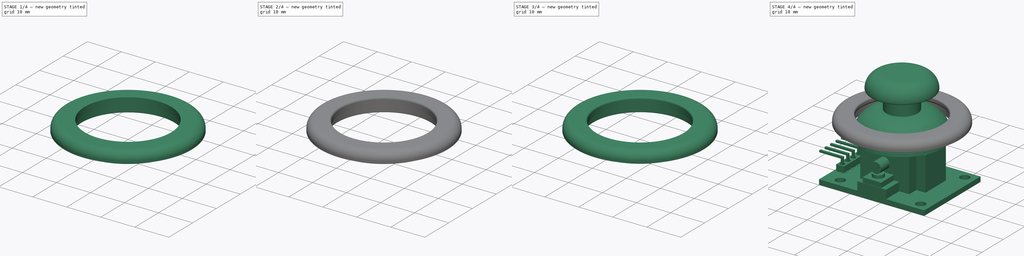
[diagram: build sequence overview — one tinted view per stage of 4, left to right]
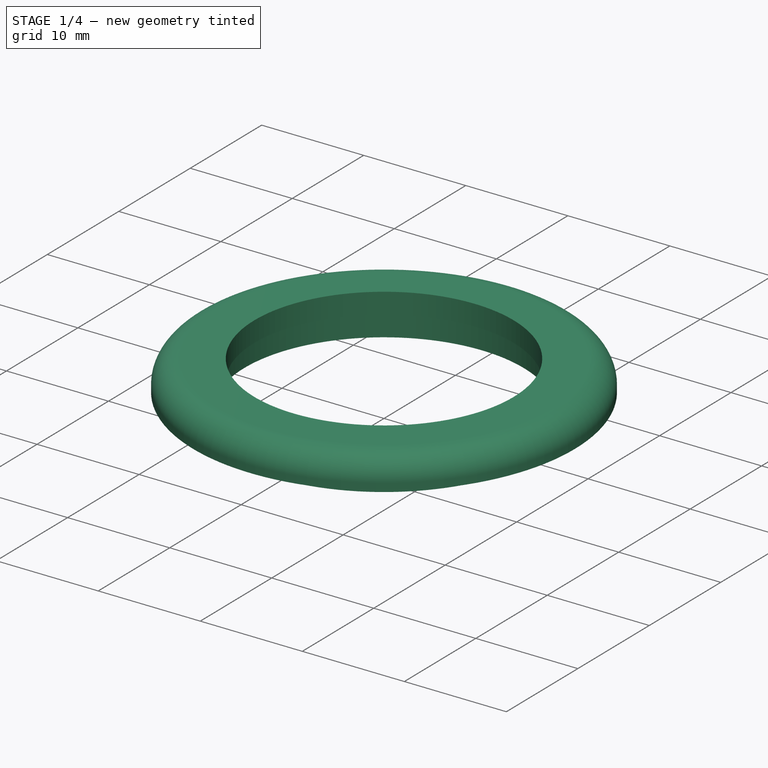
[diagram: stage 1 of 4 — iso view after this stage's code; geometry added in this stage tinted green]
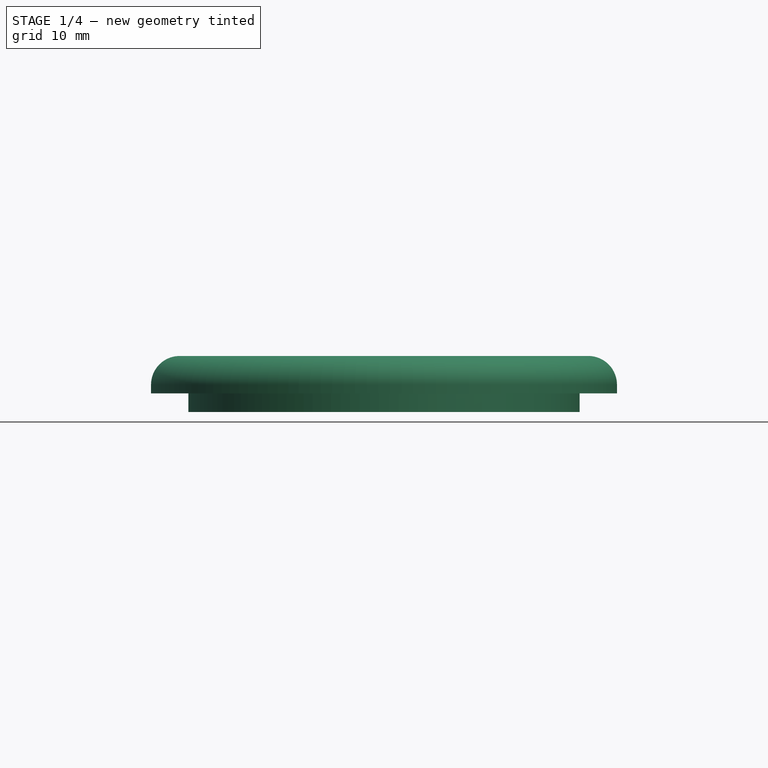
[diagram: stage 1 of 4 — front view after this stage's code; geometry added in this stage tinted green]
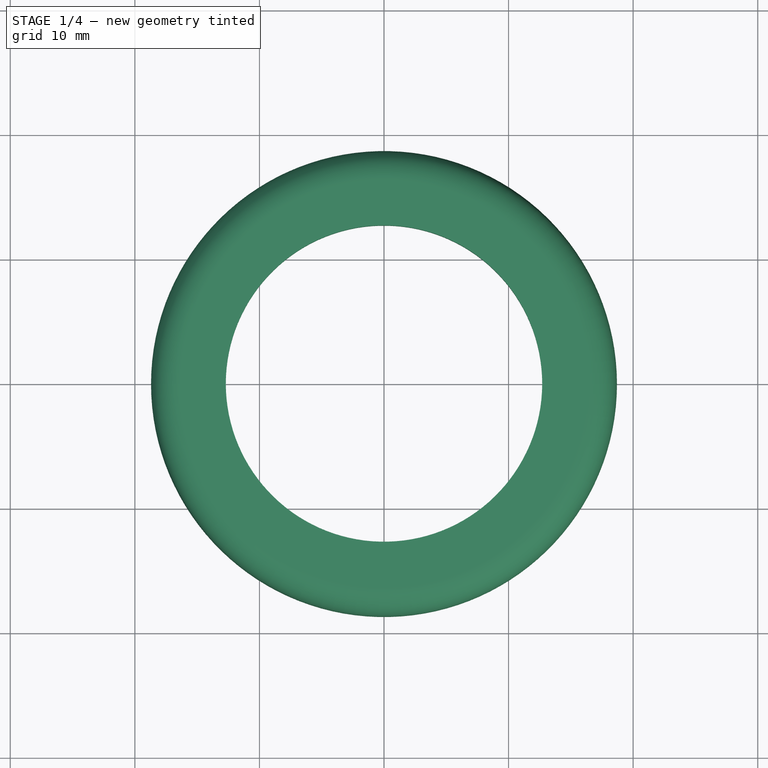
[diagram: stage 1 of 4 — top view after this stage's code; geometry added in this stage tinted green]
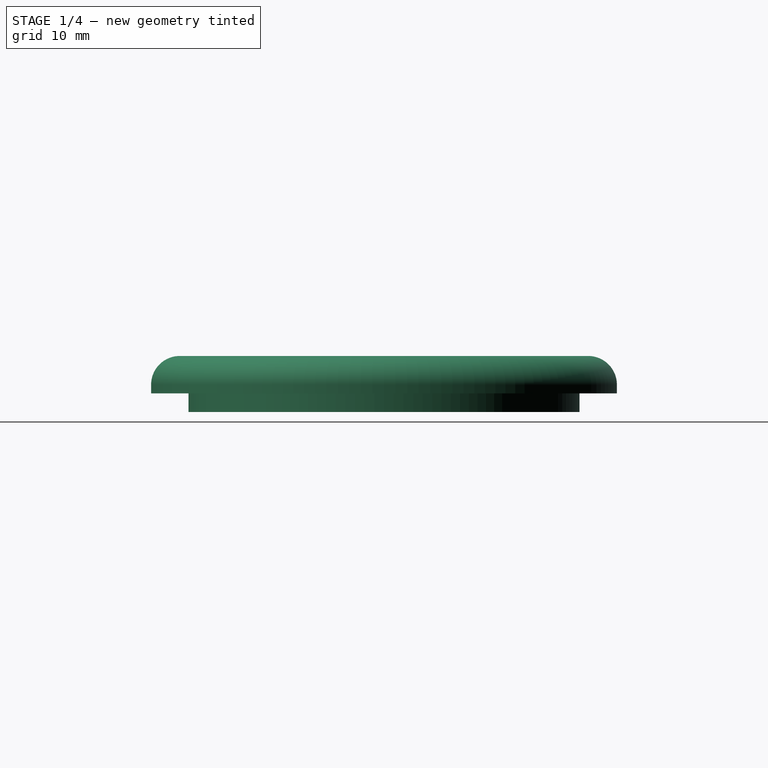
[diagram: stage 1 of 4 — right view after this stage's code; geometry added in this stage tinted green]
FCSTD DOCUMENT  (FreeCAD 0.18R16146 (Git))
Label: JoystickCap
License: All rights reserved
LicenseURL: http://en.wikipedia.org/wiki/All_rights_reserved
objects: PartDesign::Fillet×8, PartDesign::Plane×2, Part::Feature×1, Sketcher::SketchObject×1, PartDesign::Revolution×1, PartDesign::Body×1, Part::Compound×1
note: 16 computed .brp shape members not serialized (recipe doc carries the construction recipe); baked Part::Feature solids carry a one-line shape summary decoded from their .brp

FEATURE [Part::Feature] Part__Feature  label="joy_stick v2"
  Placement = pos=(-17.2,-14.1,-5.9) rot=(1,0,0;1.5708rad)
  shape: bbox 39.78 x 27.6 x 33.6 mm, 199 faces, 25 solids (baked)
FEATURE [PartDesign::Plane] DatumPlane  label="UnterkanteFaceplate"
  Length = 42
  Placement = pos=(-25,-25,10) rot=(0,0,1;0rad)
  ResizeMode = 1
  Width = 50
FEATURE [PartDesign::Plane] DatumPlane001  label="OberkanteFaceplate"
  Length = 42
  MapMode = 3
  Placement = pos=(-25,-25,11.5) rot=(0,0,1;0rad)
  ResizeMode = 1
  Width = 50
FEATURE [Sketcher::SketchObject] Sketch
  MapMode = 5
  Placement = pos=(0,0,0) rot=(1,0,0;1.5708rad)
  Support = -> [XZ_Plane]
  sketch-geometry (9):
    g0: LineSegment StartX=-13.7 StartY=10 StartZ=0 EndX=-13.7 EndY=12.5 EndZ=0
    g1: LineSegment StartX=-13.7 StartY=12.5 StartZ=0 EndX=-12.7 EndY=12.5 EndZ=0
    g2: LineSegment StartX=-12.7 StartY=12.5 StartZ=0 EndX=-12.7 EndY=14.5 EndZ=0
    g3: LineSegment StartX=-12.7 StartY=14.5 StartZ=0 EndX=-18.7 EndY=14.5 EndZ=0
    g4: LineSegment StartX=-18.7 StartY=14.5 StartZ=0 EndX=-18.7 EndY=11.5 EndZ=0
    g5: LineSegment StartX=-18.7 StartY=11.5 StartZ=0 EndX=-15.7 EndY=11.5 EndZ=0
    g6: LineSegment StartX=-15.7 StartY=11.5 StartZ=0 EndX=-15.7 EndY=10 EndZ=0
    g7: LineSegment StartX=-15.7 StartY=10 StartZ=0 EndX=-13.7 EndY=10 EndZ=0
    g8: LineSegment [constr] StartX=-16 StartY=12.7554 StartZ=0 EndX=-16 EndY=7.731 EndZ=0
  constraints (26):
    c: Vertical(g0)
    c: Coincident(g0,g1)
    c: Horizontal(g1)
    c: Coincident(g1,g2)
    c: Vertical(g2)
    c: Coincident(g2,g3)
    c: Horizontal(g3)
    c: Coincident(g3,g4)
    c: Vertical(g4)
    c: Coincident(g4,g5)
    c: Coincident(g5,g6)
    c: Vertical(g6)
    c: Coincident(g6,g7)
    c: Coincident(g7,g0)
    c: Horizontal(g7)
    c: Horizontal(g5)
    c: DistanceX(g6,g-1) = 15.7
    c: DistanceX(g7,g7) = 2
    c: DistanceY(g-1,g5) = 11.5
    c: Vertical(g8)
    c: DistanceX(g8,g-1) = 16
    c: DistanceX(g4,g5) = 3
    c: DistanceY(g6,g6) = 1.5
    c: DistanceY(g2,g2) = 2
    c: DistanceX(g3,g3) = 6
    c: DistanceY(g4,g4) = 3
FEATURE [PartDesign::Revolution] Revolution
  Angle = 360
  Axis = (0,-2e-16,1)
  Base = (0,0,0)
  Placement = pos=(0,0,0) rot=(1,0,0;1.5708rad)
  Profile = -> Sketch
  ReferenceAxis = -> Sketch [V_Axis]
FEATURE [PartDesign::Fillet] Fillet
  Base = -> Revolution [Edge7]
  BaseFeature = -> Revolution
  Placement = pos=(0,0,0) rot=(1,0,0;1.5708rad)
  Radius = 2.3
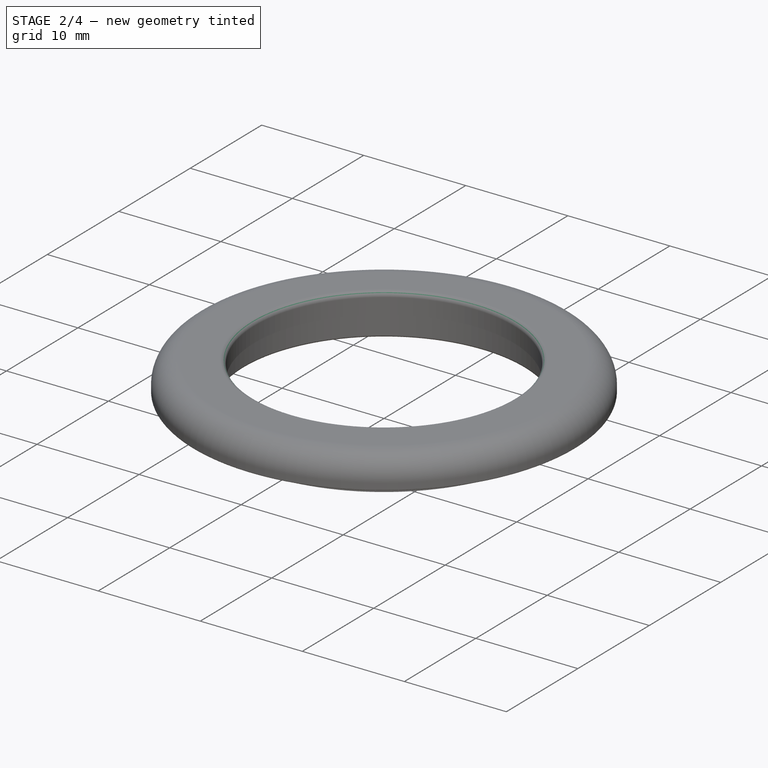
[diagram: stage 2 of 4 — iso view after this stage's code; geometry added in this stage tinted green]
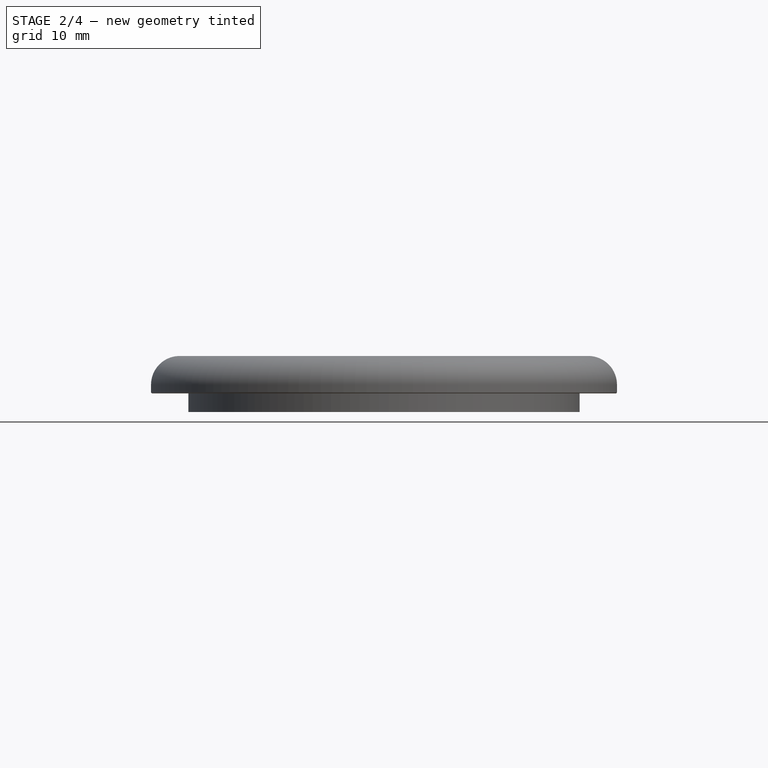
[diagram: stage 2 of 4 — front view after this stage's code; geometry added in this stage tinted green]
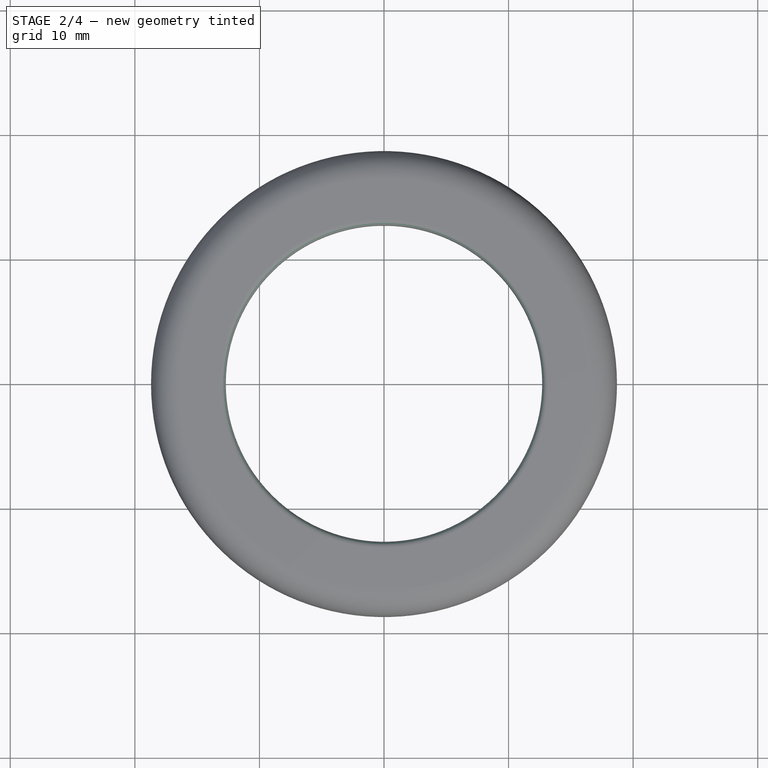
[diagram: stage 2 of 4 — top view after this stage's code; geometry added in this stage tinted green]
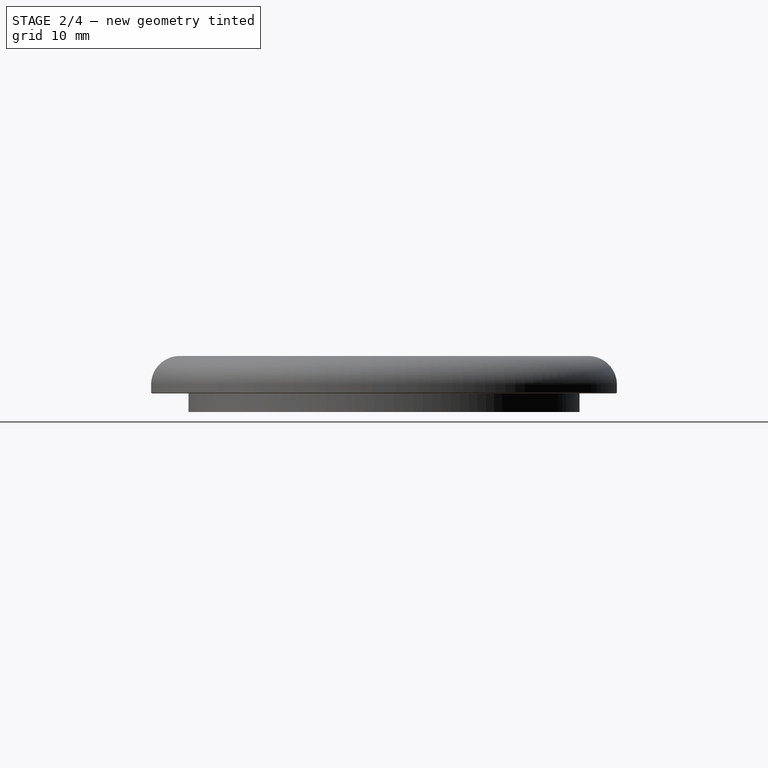
[diagram: stage 2 of 4 — right view after this stage's code; geometry added in this stage tinted green]
FEATURE [PartDesign::Fillet] Fillet001
  Base = -> Fillet [Edge2]
  BaseFeature = -> Fillet
  Placement = pos=(0,0,0) rot=(1,0,0;1.5708rad)
  Radius = 0.5
FEATURE [PartDesign::Fillet] Fillet002
  Base = -> Fillet001 [Edge10]
  BaseFeature = -> Fillet001
  Placement = pos=(0,0,0) rot=(1,0,0;1.5708rad)
  Radius = 0.1
FEATURE [PartDesign::Fillet] Fillet003
  Base = -> Fillet002 [Edge14]
  BaseFeature = -> Fillet002
  Placement = pos=(0,0,0) rot=(1,0,0;1.5708rad)
  Radius = 0.2
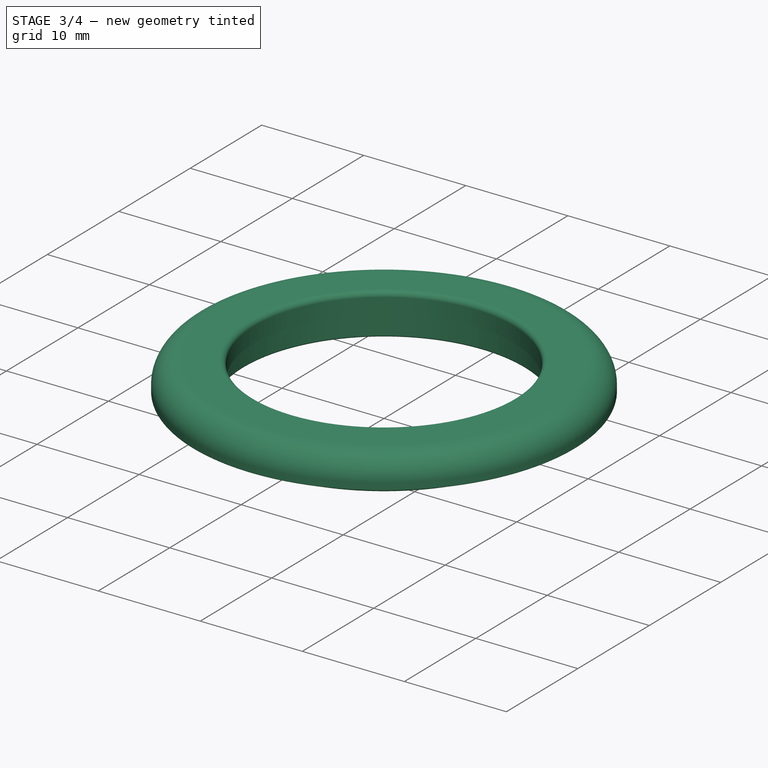
[diagram: stage 3 of 4 — iso view after this stage's code; geometry added in this stage tinted green]
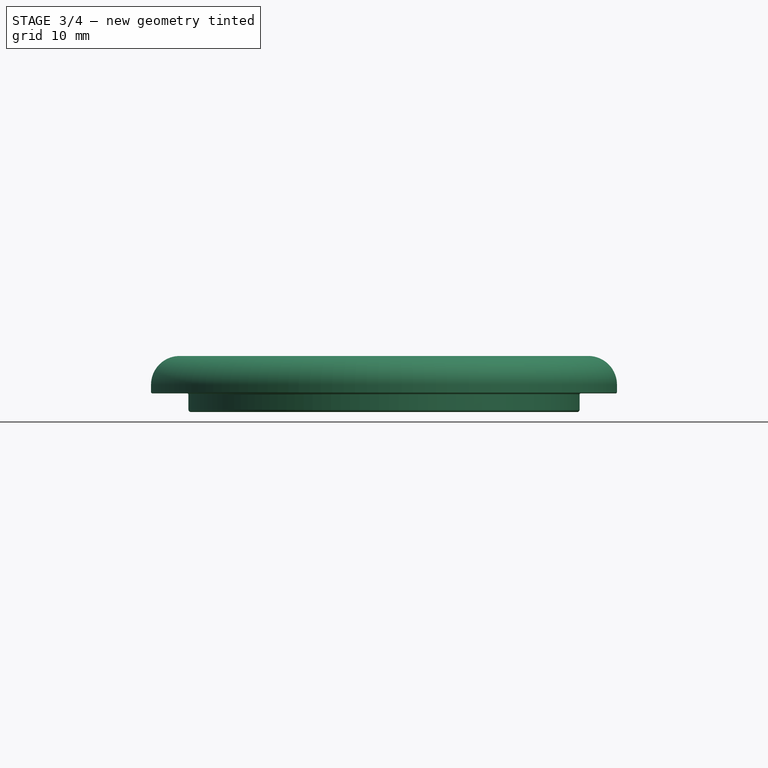
[diagram: stage 3 of 4 — front view after this stage's code; geometry added in this stage tinted green]
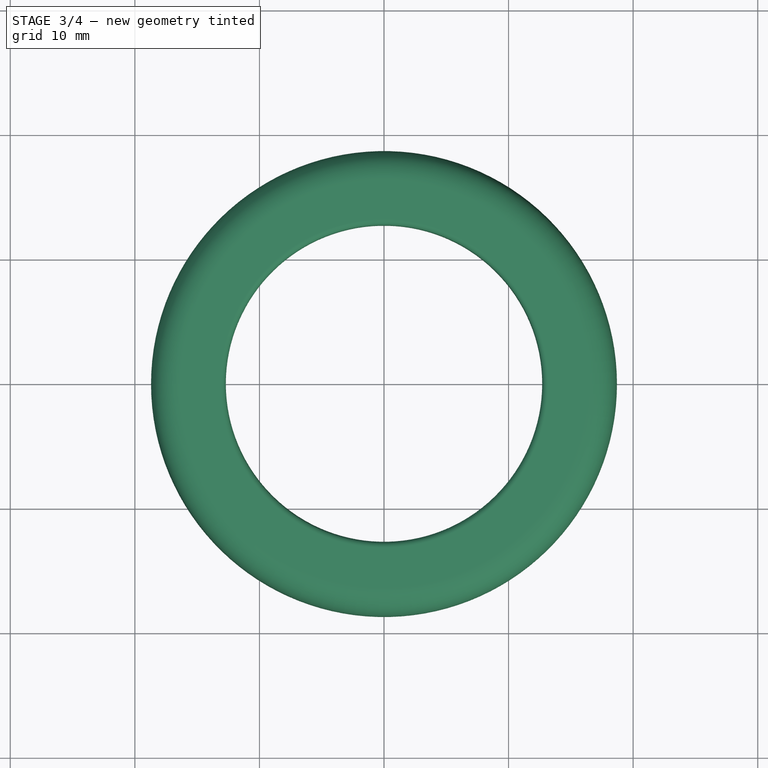
[diagram: stage 3 of 4 — top view after this stage's code; geometry added in this stage tinted green]
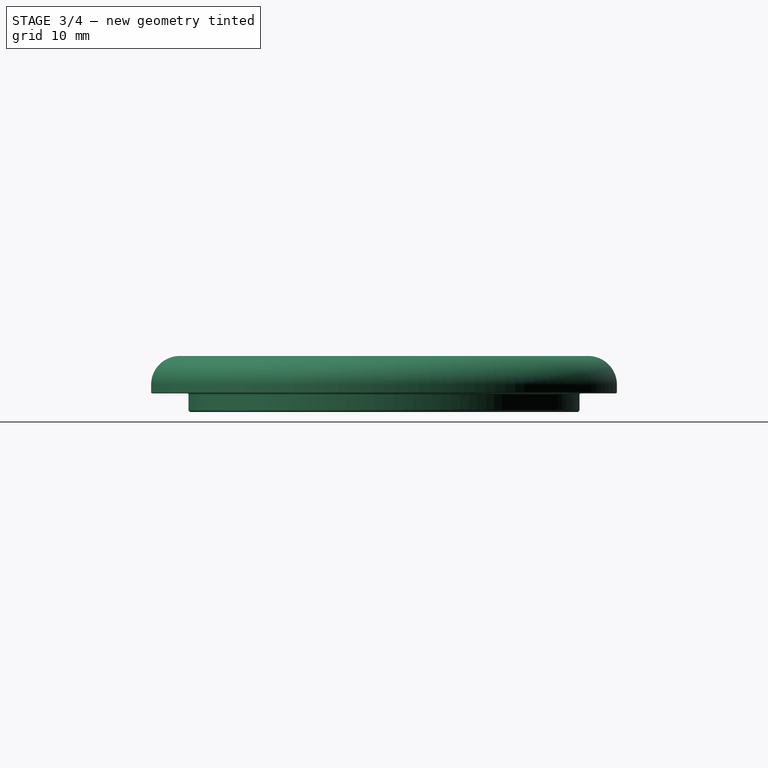
[diagram: stage 3 of 4 — right view after this stage's code; geometry added in this stage tinted green]
FEATURE [PartDesign::Fillet] Fillet004
  Base = -> Fillet003 [Edge5]
  BaseFeature = -> Fillet003
  Placement = pos=(0,0,0) rot=(1,0,0;1.5708rad)
  Radius = 0.1
FEATURE [PartDesign::Fillet] Fillet005
  Base = -> Fillet004 [Edge3]
  BaseFeature = -> Fillet004
  Placement = pos=(0,0,0) rot=(1,0,0;1.5708rad)
  Radius = 0.2
FEATURE [PartDesign::Fillet] Fillet006
  Base = -> Fillet005 [Edge15]
  BaseFeature = -> Fillet005
  Placement = pos=(0,0,0) rot=(1,0,0;1.5708rad)
  Radius = 0.2
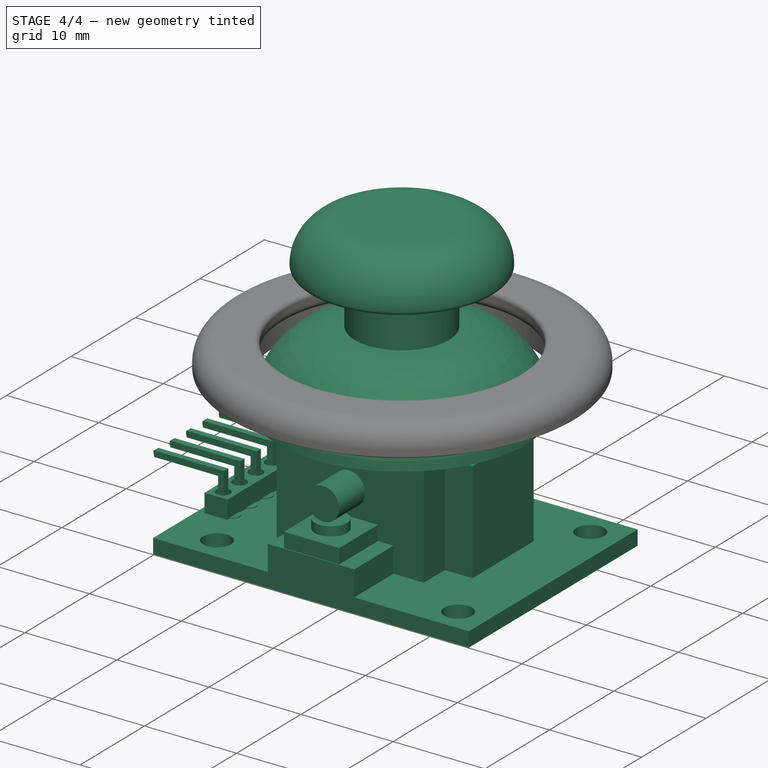
[diagram: stage 4 of 4 — iso view after this stage's code; geometry added in this stage tinted green]
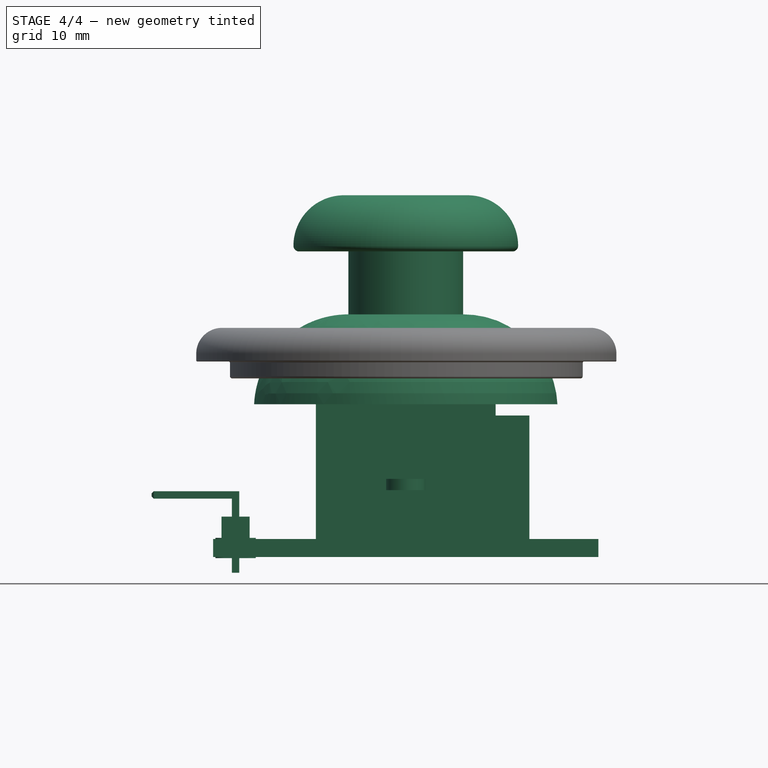
[diagram: stage 4 of 4 — front view after this stage's code; geometry added in this stage tinted green]
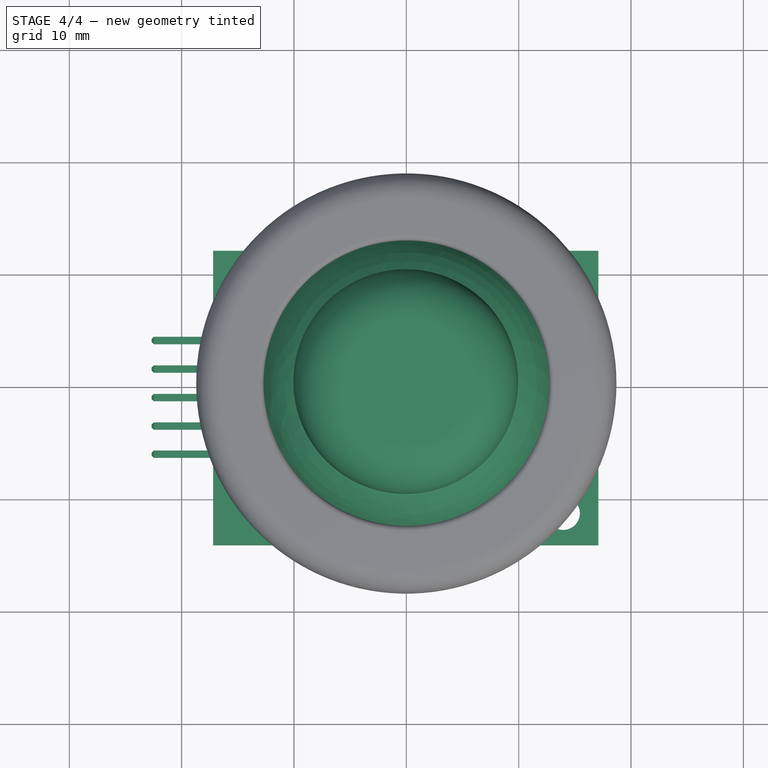
[diagram: stage 4 of 4 — top view after this stage's code; geometry added in this stage tinted green]
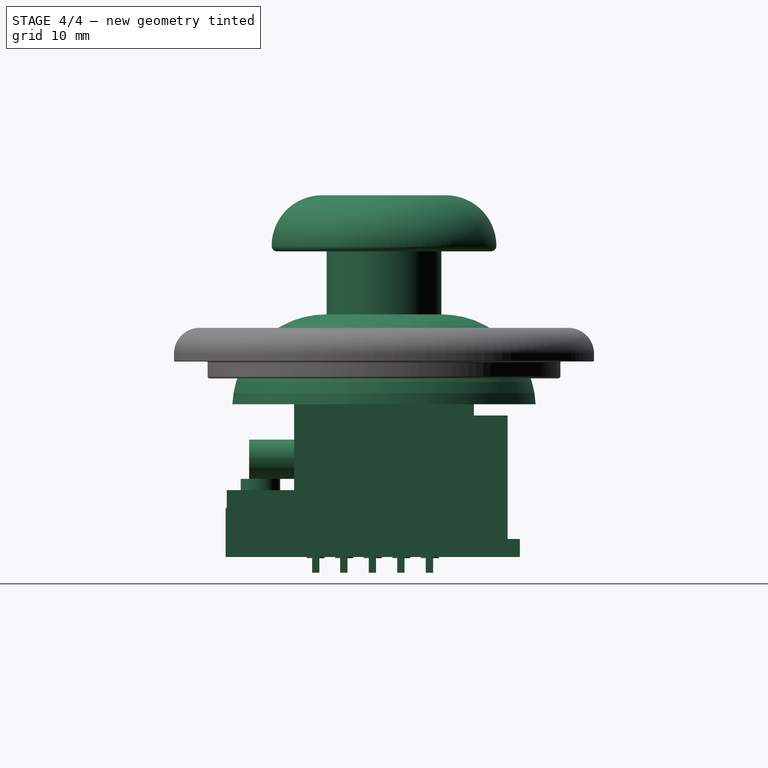
[diagram: stage 4 of 4 — right view after this stage's code; geometry added in this stage tinted green]
FEATURE [PartDesign::Fillet] Fillet007
  Base = -> Fillet006 [Edge8]
  BaseFeature = -> Fillet006
  Placement = pos=(0,0,0) rot=(1,0,0;1.5708rad)
  Radius = 1
FEATURE [PartDesign::Body] Body  label="Cap"
  Group = -> [DatumPlane,DatumPlane001,Sketch,Revolution,Fillet,Fillet001,Fillet002,Fillet003,Fillet004,Fillet005,Fillet006,Fillet007]
  Origin = -> Origin
  Tip = -> Fillet007
FEATURE [Part::Compound] Compound  label="Baugruppe"
  Links = -> [Body,Part__Feature]
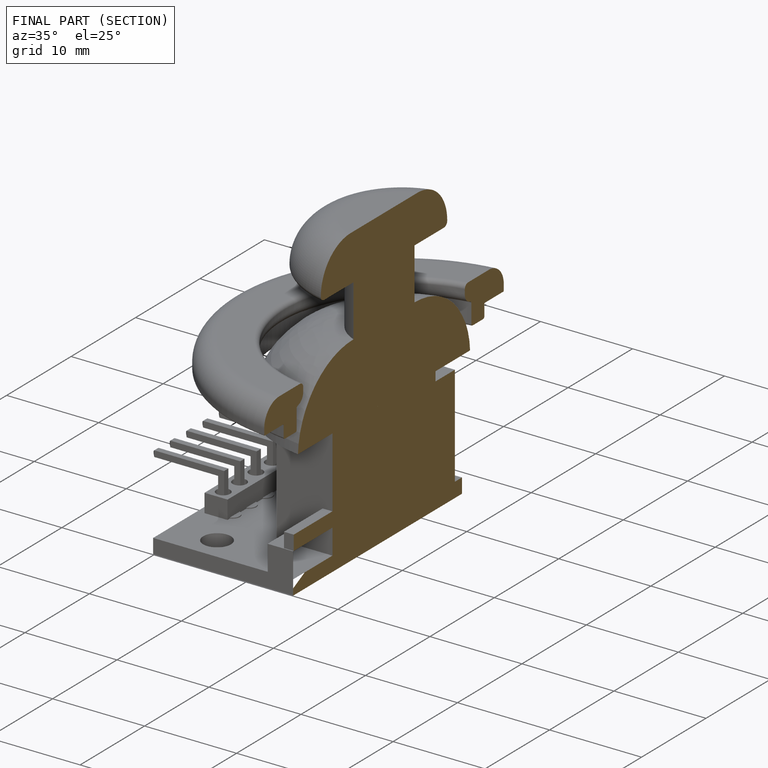
[diagram: finished part — half-section view (interior)]
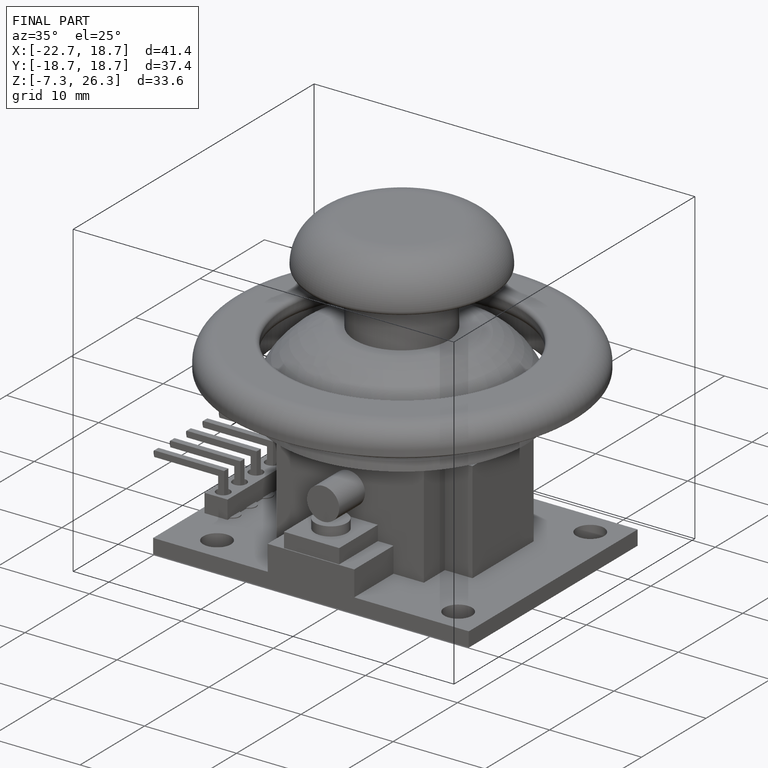
[diagram: finished part — iso view with bounding-box wireframe]
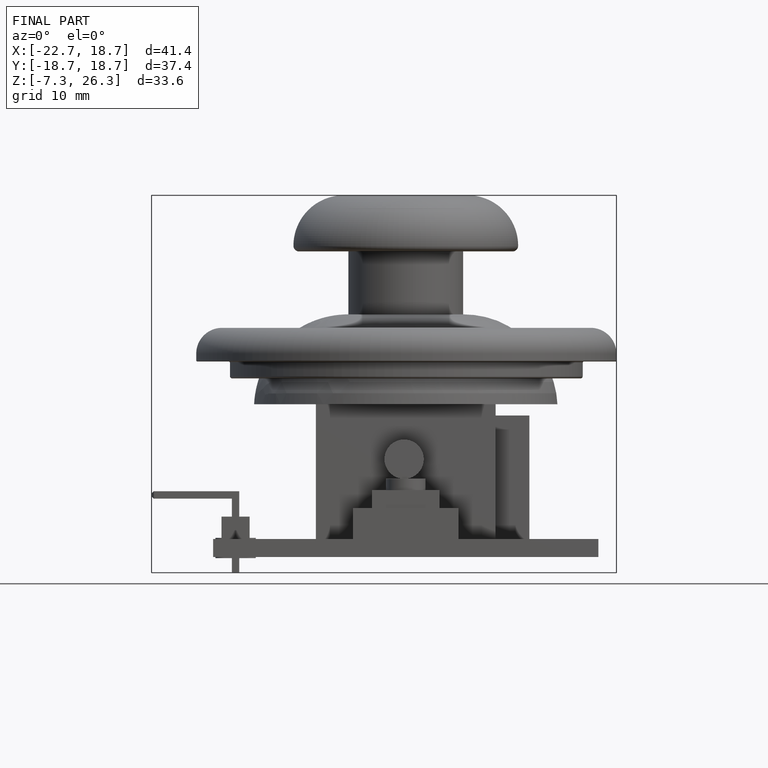
[diagram: finished part — front view with bounding-box wireframe]
